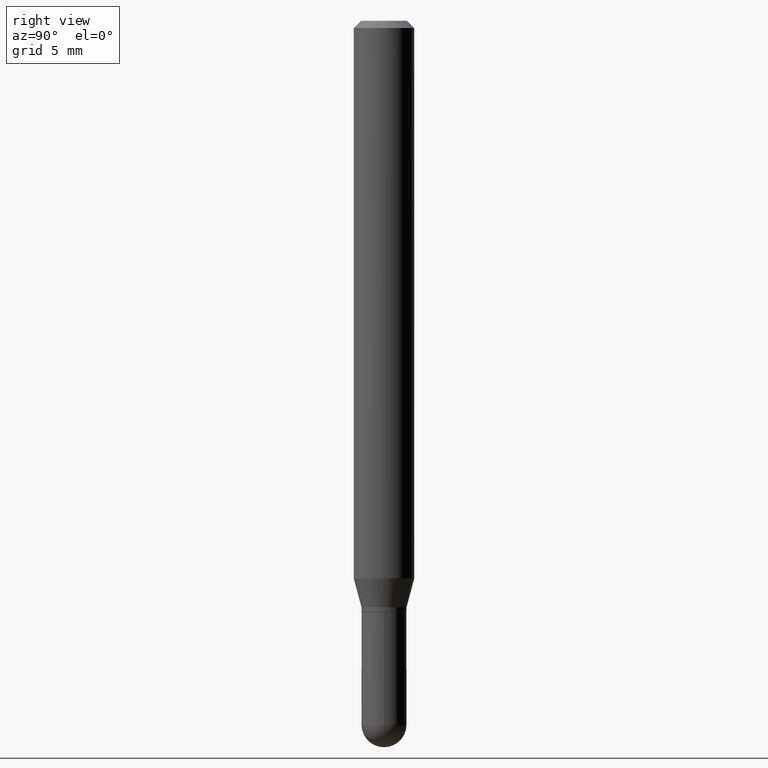
[diagram: clean part render]
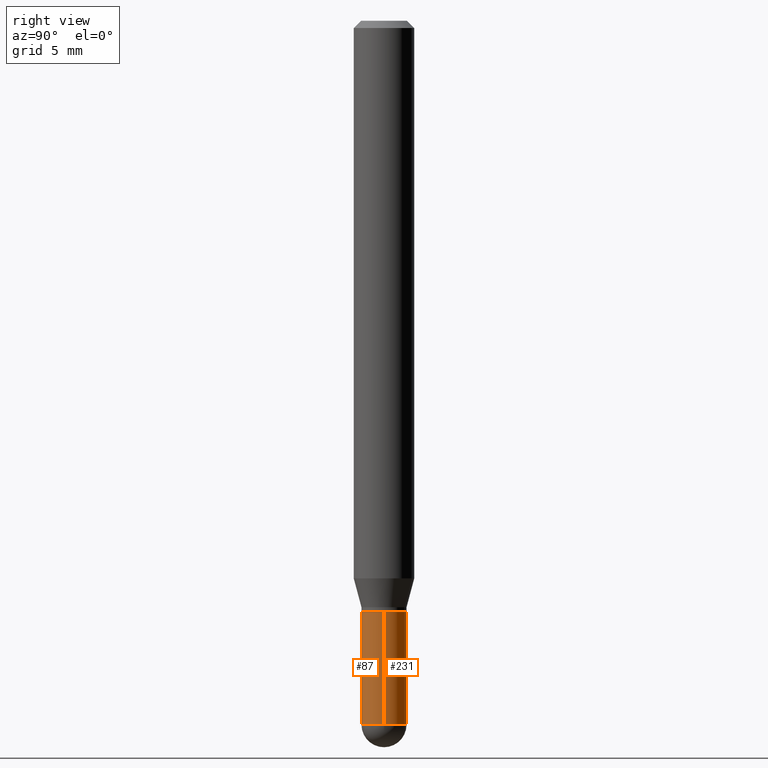
[diagram: same view with one multi-face feature highlighted, each face labeled with its STEP entity id]
A machine part, right view. The highlighted faces form ONE feature: a constant-radius fillet chain: 2 tangent blend faces with common blend radius 1.1811 mm. The faces share edges in the B-rep.
Their STEP definitions:
[1] entity #87 (Cylinder):
#10 = CYLINDRICAL_SURFACE ( 'NONE', #390, 0.04649999999999999967 ) ;
#18 = VERTEX_POINT ( 'NONE', #185 ) ;
#39 = DIRECTION ( 'NONE',  ( -2.445468806185136597E-29, 3.491481338843145583E-15, 1.000000000000000000 ) ) ;
#51 = EDGE_CURVE ( 'NONE', #18, #389, #410, .T. ) ;
#66 = VERTEX_POINT ( 'NONE', #324 ) ;
#72 = VERTEX_POINT ( 'NONE', #488 ) ;
#74 = ORIENTED_EDGE ( 'NONE', *, *, #511, .F. ) ;
#79 = DIRECTION ( 'NONE',  ( -2.445468806185136597E-29, 3.491481338843145583E-15, 1.000000000000000000 ) ) ;
#87 = ADVANCED_FACE ( 'NONE', ( #248 ), #10, .T. ) ;
#88 = CARTESIAN_POINT ( 'NONE',  ( 0.000000000000000000, 0.000000000000000000, 0.000000000000000000 ) ) ;
#101 = EDGE_CURVE ( 'NONE', #18, #66, #283, .T. ) ;
#117 = CARTESIAN_POINT ( 'NONE',  ( 3.554488909790096218E-29, -5.074868126008512823E-15, -1.453500000000000236 ) ) ;
#120 = CARTESIAN_POINT ( 'NONE',  ( -0.04649999999999999967, 3.304023721284465841E-16, -2.287304816968531530E-30 ) ) ;
#147 = CARTESIAN_POINT ( 'NONE',  ( 2.985917412352052273E-29, -4.263098714727481320E-15, -1.221000000000000085 ) ) ;
#151 = DIRECTION ( 'NONE',  ( 1.000000000000000000, -6.982962677686260400E-15, 0.000000000000000000 ) ) ;
#157 = VECTOR ( 'NONE', #441, 39.37007874015748143 ) ;
#160 = ORIENTED_EDGE ( 'NONE', *, *, #165, .T. ) ;
#163 = CIRCLE ( 'NONE', #460, 0.04649999999999999967 ) ;
#165 = EDGE_CURVE ( 'NONE', #262, #72, #402, .T. ) ;
#185 = CARTESIAN_POINT ( 'NONE',  ( -0.04649999999999999967, -4.338581048239549797E-15, -1.453500000000000236 ) ) ;
#213 = CARTESIAN_POINT ( 'NONE',  ( -3.304023721284108388E-16, -0.04650000000000505812, -1.453500000000000014 ) ) ;
#242 = CARTESIAN_POINT ( 'NONE',  ( 0.04649999999999999967, -3.247077645124114474E-16, 2.267422200745110326E-30 ) ) ;
#248 = FACE_OUTER_BOUND ( 'NONE', #322, .T. ) ;
#262 = VERTEX_POINT ( 'NONE', #419 ) ;
#272 = DIRECTION ( 'NONE',  ( 1.000000000000000000, -6.982962677686260400E-15, 0.000000000000000000 ) ) ;
#277 = DIRECTION ( 'NONE',  ( -2.445468806185136877E-29, 3.491481338843145188E-15, 1.000000000000000000 ) ) ;
#283 = LINE ( 'NONE', #120, #157 ) ;
#298 = CIRCLE ( 'NONE', #350, 0.04649999999999999967 ) ;
#306 = ORIENTED_EDGE ( 'NONE', *, *, #51, .T. ) ;
#321 = DIRECTION ( 'NONE',  ( 1.000000000000000000, -6.982962677686267499E-15, 4.876176775795936353E-29 ) ) ;
#322 = EDGE_LOOP ( 'NONE', ( #503, #306, #433, #160, #74 ) ) ;
#324 = CARTESIAN_POINT ( 'NONE',  ( -0.04649999999999999967, -4.338581048239549797E-15, -1.221000000000000085 ) ) ;
#340 = DIRECTION ( 'NONE',  ( -2.445468806185136597E-29, 3.491481338843145583E-15, 1.000000000000000000 ) ) ;
#349 = VECTOR ( 'NONE', #277, 39.37007874015748143 ) ;
#350 = AXIS2_PLACEMENT_3D ( 'NONE', #117, #340, #272 ) ;
#388 = DIRECTION ( 'NONE',  ( -2.445468806185136597E-29, 3.491481338843145583E-15, 1.000000000000000000 ) ) ;
#389 = VERTEX_POINT ( 'NONE', #213 ) ;
#390 = AXIS2_PLACEMENT_3D ( 'NONE', #88, #39, #321 ) ;
#402 = LINE ( 'NONE', #242, #349 ) ;
#410 = CIRCLE ( 'NONE', #423, 0.04649999999999999967 ) ;
#419 = CARTESIAN_POINT ( 'NONE',  ( 0.04649999999999999967, -4.993691184880407779E-15, -1.453500000000000236 ) ) ;
#423 = AXIS2_PLACEMENT_3D ( 'NONE', #438, #79, #151 ) ;
#424 = DIRECTION ( 'NONE',  ( 1.000000000000000000, -6.982962677686260400E-15, 0.000000000000000000 ) ) ;
#433 = ORIENTED_EDGE ( 'NONE', *, *, #485, .T. ) ;
#438 = CARTESIAN_POINT ( 'NONE',  ( 3.554488909790096218E-29, -5.074868126008512823E-15, -1.453500000000000236 ) ) ;
#441 = DIRECTION ( 'NONE',  ( -2.445468806185136877E-29, 3.491481338843145188E-15, 1.000000000000000000 ) ) ;
#460 = AXIS2_PLACEMENT_3D ( 'NONE', #147, #388, #424 ) ;
#485 = EDGE_CURVE ( 'NONE', #389, #262, #298, .T. ) ;
#488 = CARTESIAN_POINT ( 'NONE',  ( 0.04649999999999999967, -4.587806479239892817E-15, -1.221000000000000085 ) ) ;
#503 = ORIENTED_EDGE ( 'NONE', *, *, #101, .F. ) ;
#511 = EDGE_CURVE ( 'NONE', #66, #72, #163, .T. ) ;
[2] entity #231 (Cylinder):
#13 = CARTESIAN_POINT ( 'NONE',  ( 3.554488909790096218E-29, -5.074868126008512823E-15, -1.453500000000000236 ) ) ;
#18 = VERTEX_POINT ( 'NONE', #185 ) ;
#59 = CARTESIAN_POINT ( 'NONE',  ( 3.247077645124467489E-16, 0.04649999999999489958, -1.453500000000000458 ) ) ;
#66 = VERTEX_POINT ( 'NONE', #324 ) ;
#72 = VERTEX_POINT ( 'NONE', #488 ) ;
#90 = AXIS2_PLACEMENT_3D ( 'NONE', #495, #136, #364 ) ;
#93 = DIRECTION ( 'NONE',  ( -2.445468806185136597E-29, 3.491481338843145583E-15, 1.000000000000000000 ) ) ;
#101 = EDGE_CURVE ( 'NONE', #18, #66, #283, .T. ) ;
#108 = ORIENTED_EDGE ( 'NONE', *, *, #295, .T. ) ;
#112 = AXIS2_PLACEMENT_3D ( 'NONE', #490, #93, #440 ) ;
#120 = CARTESIAN_POINT ( 'NONE',  ( -0.04649999999999999967, 3.304023721284465841E-16, -2.287304816968531530E-30 ) ) ;
#136 = DIRECTION ( 'NONE',  ( -2.445468806185136597E-29, 3.491481338843145583E-15, 1.000000000000000000 ) ) ;
#157 = VECTOR ( 'NONE', #441, 39.37007874015748143 ) ;
#165 = EDGE_CURVE ( 'NONE', #262, #72, #402, .T. ) ;
#175 = DIRECTION ( 'NONE',  ( 1.000000000000000000, -6.982962677686260400E-15, 0.000000000000000000 ) ) ;
#177 = CIRCLE ( 'NONE', #468, 0.04649999999999999967 ) ;
#185 = CARTESIAN_POINT ( 'NONE',  ( -0.04649999999999999967, -4.338581048239549797E-15, -1.453500000000000236 ) ) ;
#206 = CIRCLE ( 'NONE', #372, 0.04649999999999999967 ) ;
#212 = EDGE_CURVE ( 'NONE', #72, #66, #237, .T. ) ;
#215 = ORIENTED_EDGE ( 'NONE', *, *, #228, .T. ) ;
#218 = FACE_OUTER_BOUND ( 'NONE', #508, .T. ) ;
#228 = EDGE_CURVE ( 'NONE', #236, #18, #177, .T. ) ;
#231 = ADVANCED_FACE ( 'NONE', ( #218 ), #333, .T. ) ;
#232 = ORIENTED_EDGE ( 'NONE', *, *, #101, .T. ) ;
#236 = VERTEX_POINT ( 'NONE', #59 ) ;
#237 = CIRCLE ( 'NONE', #112, 0.04649999999999999967 ) ;
#242 = CARTESIAN_POINT ( 'NONE',  ( 0.04649999999999999967, -3.247077645124114474E-16, 2.267422200745110326E-30 ) ) ;
#262 = VERTEX_POINT ( 'NONE', #419 ) ;
#268 = ORIENTED_EDGE ( 'NONE', *, *, #165, .F. ) ;
#277 = DIRECTION ( 'NONE',  ( -2.445468806185136877E-29, 3.491481338843145188E-15, 1.000000000000000000 ) ) ;
#283 = LINE ( 'NONE', #120, #157 ) ;
#293 = DIRECTION ( 'NONE',  ( -2.445468806185136597E-29, 3.491481338843145583E-15, 1.000000000000000000 ) ) ;
#295 = EDGE_CURVE ( 'NONE', #262, #236, #206, .T. ) ;
#324 = CARTESIAN_POINT ( 'NONE',  ( -0.04649999999999999967, -4.338581048239549797E-15, -1.221000000000000085 ) ) ;
#333 = CYLINDRICAL_SURFACE ( 'NONE', #90, 0.04649999999999999967 ) ;
#349 = VECTOR ( 'NONE', #277, 39.37007874015748143 ) ;
#364 = DIRECTION ( 'NONE',  ( 1.000000000000000000, -6.982962677686267499E-15, 4.876176775795936353E-29 ) ) ;
#368 = DIRECTION ( 'NONE',  ( 1.000000000000000000, -6.982962677686260400E-15, 0.000000000000000000 ) ) ;
#372 = AXIS2_PLACEMENT_3D ( 'NONE', #492, #454, #368 ) ;
#402 = LINE ( 'NONE', #242, #349 ) ;
#412 = ORIENTED_EDGE ( 'NONE', *, *, #212, .F. ) ;
#419 = CARTESIAN_POINT ( 'NONE',  ( 0.04649999999999999967, -4.993691184880407779E-15, -1.453500000000000236 ) ) ;
#440 = DIRECTION ( 'NONE',  ( 1.000000000000000000, -6.982962677686260400E-15, 0.000000000000000000 ) ) ;
#441 = DIRECTION ( 'NONE',  ( -2.445468806185136877E-29, 3.491481338843145188E-15, 1.000000000000000000 ) ) ;
#454 = DIRECTION ( 'NONE',  ( -2.445468806185136597E-29, 3.491481338843145583E-15, 1.000000000000000000 ) ) ;
#468 = AXIS2_PLACEMENT_3D ( 'NONE', #13, #293, #175 ) ;
#488 = CARTESIAN_POINT ( 'NONE',  ( 0.04649999999999999967, -4.587806479239892817E-15, -1.221000000000000085 ) ) ;
#490 = CARTESIAN_POINT ( 'NONE',  ( 2.985917412352052273E-29, -4.263098714727481320E-15, -1.221000000000000085 ) ) ;
#492 = CARTESIAN_POINT ( 'NONE',  ( 3.554488909790096218E-29, -5.074868126008512823E-15, -1.453500000000000236 ) ) ;
#495 = CARTESIAN_POINT ( 'NONE',  ( 0.000000000000000000, 0.000000000000000000, 0.000000000000000000 ) ) ;
#508 = EDGE_LOOP ( 'NONE', ( #215, #232, #412, #268, #108 ) ) ;